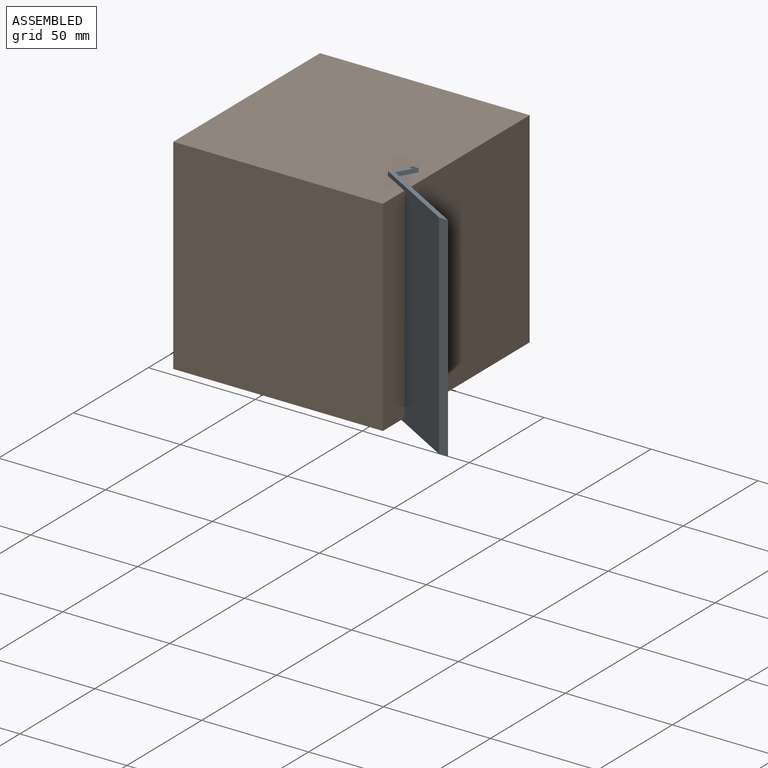
[diagram: assembled view]
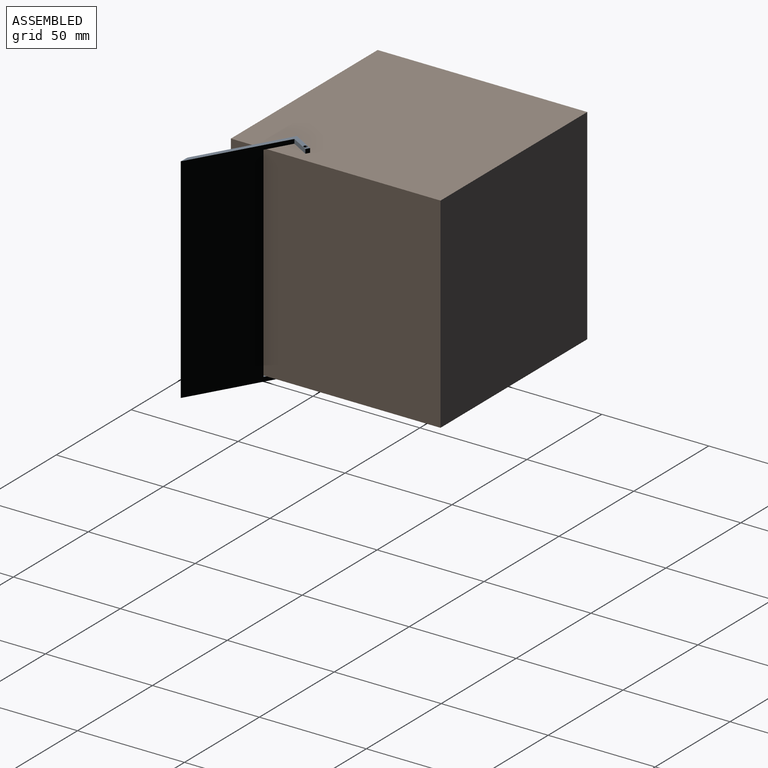
[diagram: assembled view, second angle]
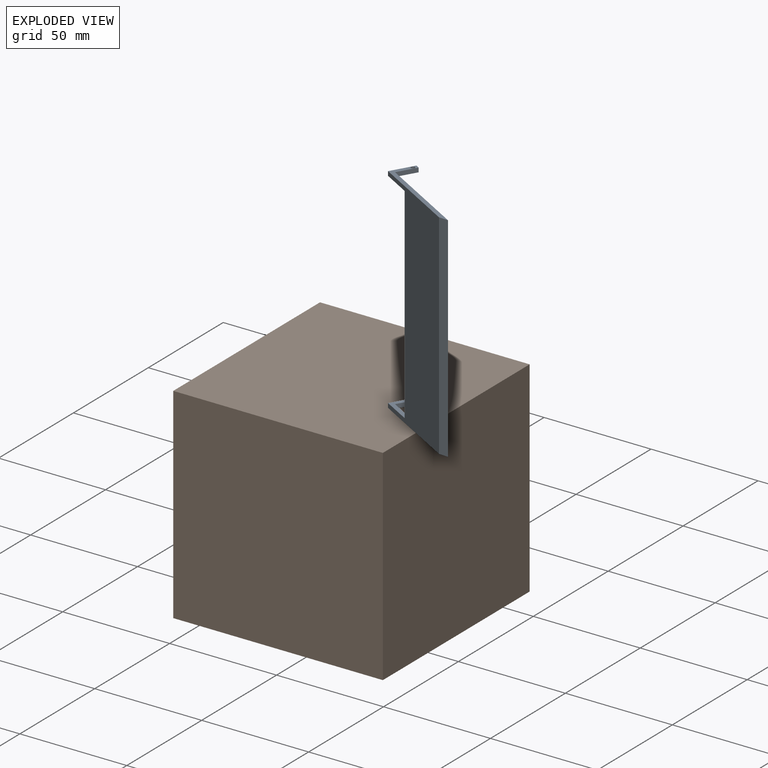
[diagram: exploded view]
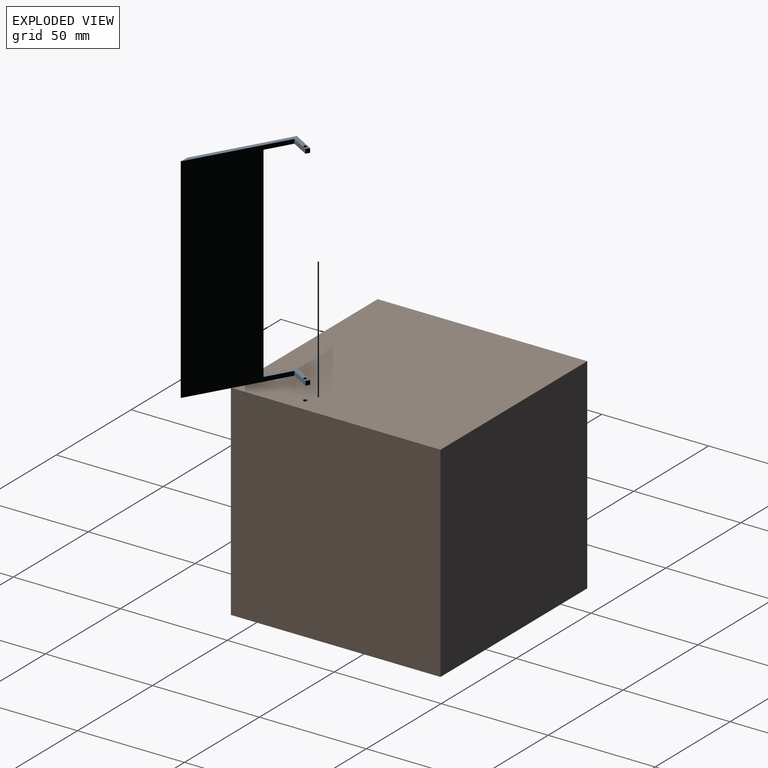
[diagram: exploded view, second angle]
ASSEMBLY  parts=2 mates=2
PART A: 16 faces, bbox 12x100x50 mm
  f0: plane 12x2mm, normal (0,0,-1), area 24mm2, adj f4,f6,f9,f11
  f1: plane 100x48mm, normal (-1,0,0), area 3552mm2, adj f2,f5,f8,f9,f10,f11,f12,f15
  f2: plane 10x2mm, normal (0,0,1), area 20mm2, adj f1,f3,f8,f10
  f3: plane 2x2mm, normal (-1,0,0), area 4mm2, adj f2,f7,f8,f10
  f4: plane 100x46.18mm, normal (1,0,0), area 3177.8mm2, adj f0,f7,f8,f9,f10,f11,f12,f15
  f5: plane 10x2mm, normal (0,0,1), area 20mm2, adj f1,f6,f9,f11
  f6: plane 2x2mm, normal (-1,0,0), area 4mm2, adj f0,f5,f9,f11
  f7: plane 12x2mm, normal (0,0,-1), area 24mm2, adj f3,f4,f8,f10
  f8: plane 50x12mm, normal (0,-1,0), area 113.6mm2, adj f1,f2,f3,f4,f7,f14,f15
  f9: plane 50x12mm, normal (0,1,0), area 113.6mm2, adj f0,f1,f4,f5,f6,f13,f15
  f10: plane 15x12mm, normal (0,1,0), area 47.5mm2, adj f1,f2,f3,f4,f7,f12,f14
  f11: plane 15x12mm, normal (0,-1,0), area 47.5mm2, adj f0,f1,f4,f5,f6,f12,f13
  f12: plane 96x2mm, normal (0,0,-1), area 192mm2, adj f1,f4,f10,f11
  f13: cylinder r=0.9mm len=2mm, axis (0,1,0), area 11.3mm2, adj f9,f11
  f14: cylinder r=0.9mm len=2mm, axis (0,1,0), area 11.3mm2, adj f8,f10
  f15: plane 100x3.82mm, normal (0.89,0,0.46), area 431.4mm2, adj f1,f4,f8,f9
PART B: 7 faces, bbox 98x96x98 mm
  f0: plane 98x96mm, normal (0,0,1), area 9408mm2, adj f1,f3,f4,f5
  f1: plane 98x96mm, normal (-1,0,0), area 9408mm2, adj f0,f2,f4,f5
  f2: plane 98x96mm, normal (0,0,-1), area 9408mm2, adj f1,f3,f4,f5
  f3: plane 98x96mm, normal (1,0,0), area 9408mm2, adj f0,f2,f4,f5
  f4: plane 98x98mm, normal (0,-1,0), area 9600.9mm2, adj f0,f1,f2,f3,f6
  f5: plane 98x98mm, normal (0,1,0), area 9600.9mm2, adj f0,f1,f2,f3,f6
  f6: cylinder r=1mm len=96mm, axis (0,-1,0), area 603.2mm2, adj f4,f5
PLACE A rot(axis=(-0.38,0.65,-0.65),138.6deg) t=(45.21,-26.2,-98)mm
PLACE B rot(axis=(-1,0,0),90deg) t=(2.67,-6.54,-96)mm
MATE revolute A.f13 <-> B.f6  axis (0,0,-1) through (42.01,-19.01,0)mm
MATE planar B.f4 <-> A.f10  axis (0,0,1) through (0,0,0)mm
